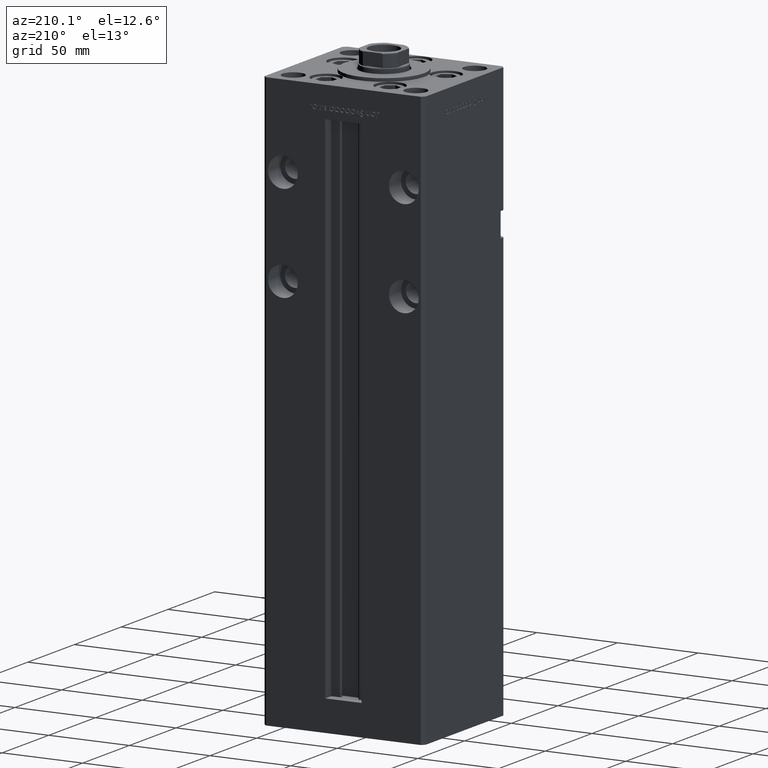
[diagram: clean part render]
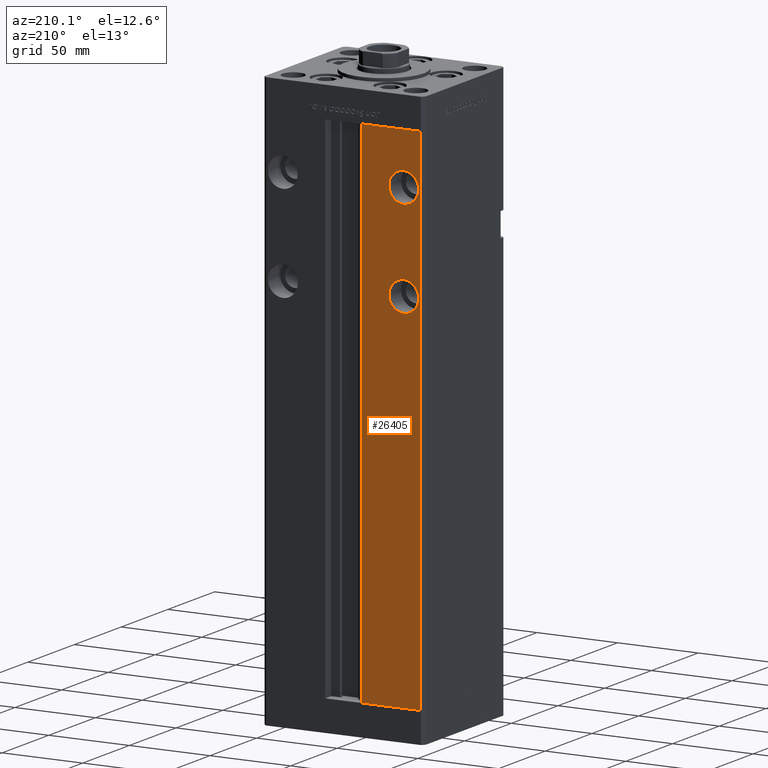
[diagram: same view with one face highlighted and labeled with its STEP entity id]
A machine part, auxiliary view. The second image highlights one B-rep face of the part: STEP entity #26405.
In plain terms, the highlighted planar face has unit normal (0, -1, 0).
Its self-contained STEP definition (entity closure, byte-faithful):
#92 = DIRECTION ( 'NONE',  ( 0.000000000000000000, 1.000000000000000000, -0.000000000000000000 ) ) ;
#837 = EDGE_CURVE ( 'NONE', #34733, #37811, #38616, .T. ) ;
#1332 = ORIENTED_EDGE ( 'NONE', *, *, #9695, .T. ) ;
#1616 = ORIENTED_EDGE ( 'NONE', *, *, #837, .F. ) ;
#1833 = VERTEX_POINT ( 'NONE', #6556 ) ;
#1868 = VERTEX_POINT ( 'NONE', #52757 ) ;
#2210 = EDGE_CURVE ( 'NONE', #5260, #6294, #19915, .T. ) ;
#4642 = ORIENTED_EDGE ( 'NONE', *, *, #2210, .F. ) ;
#4681 = VECTOR ( 'NONE', #38868, 1000.000000000000000 ) ;
#5260 = VERTEX_POINT ( 'NONE', #17698 ) ;
#6294 = VERTEX_POINT ( 'NONE', #29753 ) ;
#6556 = CARTESIAN_POINT ( 'NONE',  ( -11.24999999999999645, 43.50000000000000000, 0.000000000000000000 ) ) ;
#7164 = DIRECTION ( 'NONE',  ( 0.000000000000000000, 0.000000000000000000, 1.000000000000000000 ) ) ;
#9199 = ORIENTED_EDGE ( 'NONE', *, *, #32461, .F. ) ;
#9265 = ORIENTED_EDGE ( 'NONE', *, *, #13880, .T. ) ;
#9311 = DIRECTION ( 'NONE',  ( -0.000000000000000000, -0.000000000000000000, 1.000000000000000000 ) ) ;
#9455 = AXIS2_PLACEMENT_3D ( 'NONE', #40223, #92, #11188 ) ;
#9695 = EDGE_CURVE ( 'NONE', #5260, #25275, #23361, .T. ) ;
#9943 = DIRECTION ( 'NONE',  ( 0.000000000000000000, 0.000000000000000000, 1.000000000000000000 ) ) ;
#10771 = ORIENTED_EDGE ( 'NONE', *, *, #18046, .F. ) ;
#11188 = DIRECTION ( 'NONE',  ( 0.000000000000000000, 0.000000000000000000, -1.000000000000000000 ) ) ;
#11397 = VERTEX_POINT ( 'NONE', #13213 ) ;
#11482 = AXIS2_PLACEMENT_3D ( 'NONE', #36283, #48640, #44607 ) ;
#12069 = FACE_OUTER_BOUND ( 'NONE', #38594, .T. ) ;
#13213 = CARTESIAN_POINT ( 'NONE',  ( -37.50000000000000000, 43.50000000000000000, 217.2500000000000000 ) ) ;
#13880 = EDGE_CURVE ( 'NONE', #1833, #6294, #38080, .T. ) ;
#14133 = LINE ( 'NONE', #50169, #35775 ) ;
#14437 = DIRECTION ( 'NONE',  ( 0.000000000000000000, 1.000000000000000000, 0.000000000000000000 ) ) ;
#14947 = AXIS2_PLACEMENT_3D ( 'NONE', #34659, #38178, #9943 ) ;
#15024 = CARTESIAN_POINT ( 'NONE',  ( -11.24999999999999645, 43.50000000000000000, 318.5000000000000000 ) ) ;
#17183 = VECTOR ( 'NONE', #23677, 1000.000000000000000 ) ;
#17698 = CARTESIAN_POINT ( 'NONE',  ( -48.00000000000000711, 43.50000000000000000, 318.5000000000000000 ) ) ;
#18046 = EDGE_CURVE ( 'NONE', #1868, #11397, #41580, .T. ) ;
#19334 = DIRECTION ( 'NONE',  ( 1.000000000000000000, 0.000000000000000000, 0.000000000000000000 ) ) ;
#19896 = PLANE ( 'NONE',  #11482 ) ;
#19915 = LINE ( 'NONE', #29230, #17183 ) ;
#20039 = VECTOR ( 'NONE', #19334, 1000.000000000000000 ) ;
#20929 = CARTESIAN_POINT ( 'NONE',  ( -37.50000000000000000, 43.50000000000000000, 277.2500000000000000 ) ) ;
#23102 = CARTESIAN_POINT ( 'NONE',  ( -37.50000000000000000, 43.50000000000000000, 295.7499999999999432 ) ) ;
#23361 = LINE ( 'NONE', #15024, #20039 ) ;
#23677 = DIRECTION ( 'NONE',  ( -0.000000000000000000, -0.000000000000000000, -1.000000000000000000 ) ) ;
#23920 = FACE_BOUND ( 'NONE', #28890, .T. ) ;
#24336 = DIRECTION ( 'NONE',  ( 0.000000000000000000, 0.000000000000000000, -1.000000000000000000 ) ) ;
#25275 = VERTEX_POINT ( 'NONE', #33094 ) ;
#26405 = ADVANCED_FACE ( 'NONE', ( #23920, #40314, #12069 ), #19896, .F. ) ;
#27047 = DIRECTION ( 'NONE',  ( 0.000000000000000000, 1.000000000000000000, -0.000000000000000000 ) ) ;
#27696 = ORIENTED_EDGE ( 'NONE', *, *, #39138, .F. ) ;
#28890 = EDGE_LOOP ( 'NONE', ( #9199, #1616 ) ) ;
#29230 = CARTESIAN_POINT ( 'NONE',  ( -48.00000000000000711, 43.50000000000000000, 318.5000000000000000 ) ) ;
#29753 = CARTESIAN_POINT ( 'NONE',  ( -48.00000000000000711, 43.50000000000000000, 0.000000000000000000 ) ) ;
#30795 = EDGE_CURVE ( 'NONE', #11397, #1868, #46790, .T. ) ;
#32461 = EDGE_CURVE ( 'NONE', #37811, #34733, #46745, .T. ) ;
#33094 = CARTESIAN_POINT ( 'NONE',  ( -11.24999999999999645, 43.50000000000000000, 318.5000000000000000 ) ) ;
#33946 = AXIS2_PLACEMENT_3D ( 'NONE', #51790, #14437, #7164 ) ;
#34659 = CARTESIAN_POINT ( 'NONE',  ( -37.50000000000000000, 43.50000000000000000, 226.5000000000000000 ) ) ;
#34733 = VERTEX_POINT ( 'NONE', #20929 ) ;
#35052 = ORIENTED_EDGE ( 'NONE', *, *, #30795, .F. ) ;
#35103 = CARTESIAN_POINT ( 'NONE',  ( -11.24999999999999645, 43.50000000000000000, 0.000000000000000000 ) ) ;
#35775 = VECTOR ( 'NONE', #9311, 1000.000000000000000 ) ;
#36283 = CARTESIAN_POINT ( 'NONE',  ( -11.24999999999999645, 43.50000000000000000, 318.5000000000000000 ) ) ;
#37811 = VERTEX_POINT ( 'NONE', #23102 ) ;
#38080 = LINE ( 'NONE', #35103, #4681 ) ;
#38178 = DIRECTION ( 'NONE',  ( 0.000000000000000000, 1.000000000000000000, 0.000000000000000000 ) ) ;
#38594 = EDGE_LOOP ( 'NONE', ( #1332, #27696, #9265, #4642 ) ) ;
#38616 = CIRCLE ( 'NONE', #9455, 9.249999999999980460 ) ;
#38824 = EDGE_LOOP ( 'NONE', ( #10771, #35052 ) ) ;
#38868 = DIRECTION ( 'NONE',  ( -1.000000000000000000, 0.000000000000000000, 0.000000000000000000 ) ) ;
#39138 = EDGE_CURVE ( 'NONE', #1833, #25275, #14133, .T. ) ;
#40223 = CARTESIAN_POINT ( 'NONE',  ( -37.50000000000000000, 43.50000000000000000, 286.5000000000000000 ) ) ;
#40314 = FACE_BOUND ( 'NONE', #38824, .T. ) ;
#41580 = CIRCLE ( 'NONE', #14947, 9.250000000000008882 ) ;
#44607 = DIRECTION ( 'NONE',  ( 0.000000000000000000, -0.000000000000000000, -1.000000000000000000 ) ) ;
#46745 = CIRCLE ( 'NONE', #48461, 9.249999999999980460 ) ;
#46790 = CIRCLE ( 'NONE', #33946, 9.250000000000008882 ) ;
#47473 = CARTESIAN_POINT ( 'NONE',  ( -37.50000000000000000, 43.50000000000000000, 286.5000000000000000 ) ) ;
#48461 = AXIS2_PLACEMENT_3D ( 'NONE', #47473, #27047, #24336 ) ;
#48640 = DIRECTION ( 'NONE',  ( 0.000000000000000000, -1.000000000000000000, 0.000000000000000000 ) ) ;
#50169 = CARTESIAN_POINT ( 'NONE',  ( -11.24999999999999645, 43.50000000000000000, 0.000000000000000000 ) ) ;
#51790 = CARTESIAN_POINT ( 'NONE',  ( -37.50000000000000000, 43.50000000000000000, 226.5000000000000000 ) ) ;
#52757 = CARTESIAN_POINT ( 'NONE',  ( -37.50000000000000000, 43.50000000000000000, 235.7500000000000284 ) ) ;